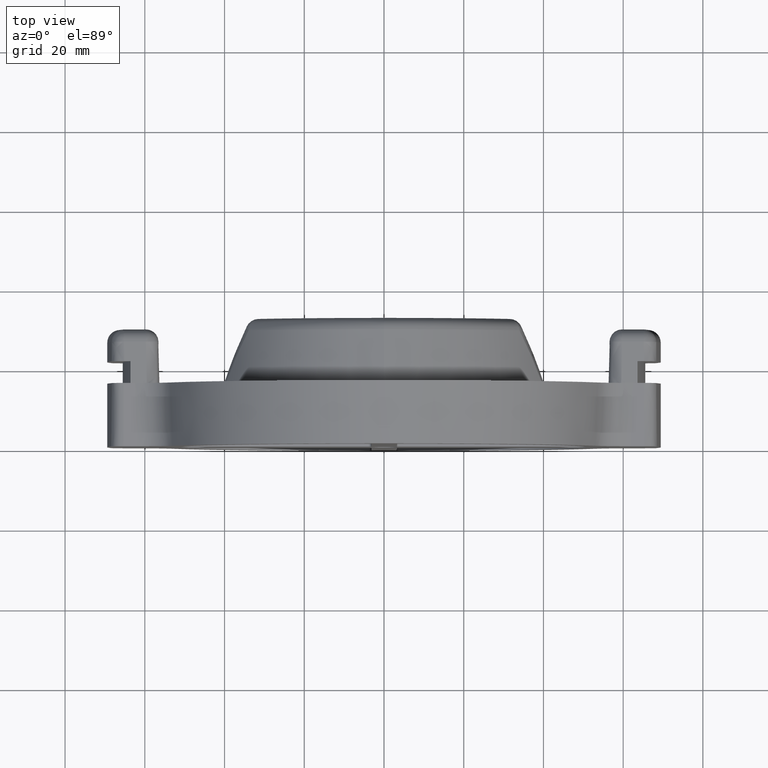
[diagram: clean part render]
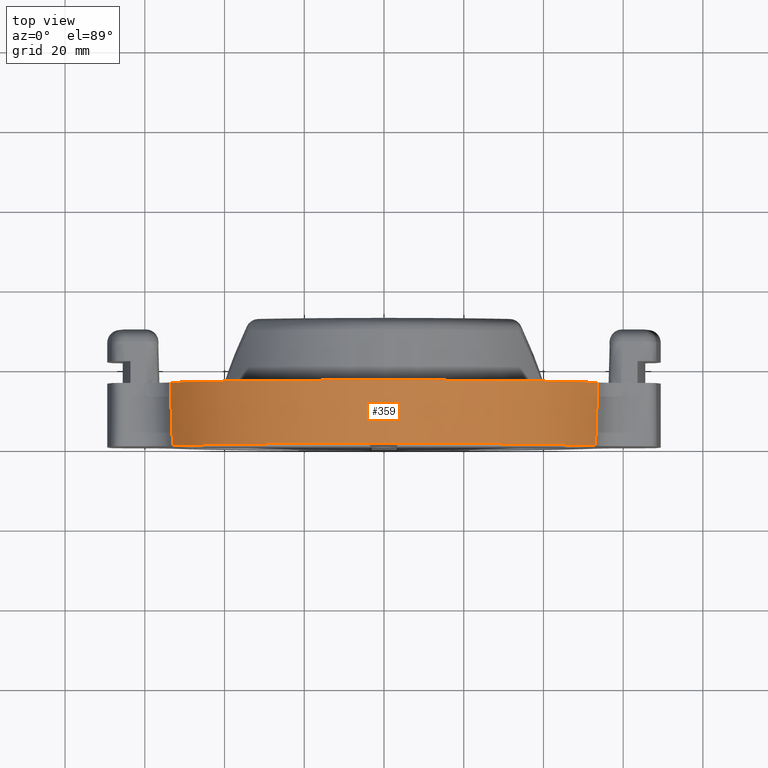
[diagram: same view with one face highlighted and labeled with its STEP entity id]
A machine part, top view. The second image highlights one B-rep face of the part: STEP entity #359.
In plain terms, the highlighted conical surface has half-angle 3 deg.
Its self-contained STEP definition (entity closure, byte-faithful):
#359 = ADVANCED_FACE ( 'NONE', ( #21512 ), #21515, .T. ) ;
#8483 = EDGE_LOOP ( 'NONE', ( #16608, #16607, #16606, #16605 ) ) ;
#12467 = AXIS2_PLACEMENT_3D ( 'NONE', #23083, #23114, #23115 ) ;
#12469 = AXIS2_PLACEMENT_3D ( 'NONE', #23200, #23201, #23202 ) ;
#13695 = CARTESIAN_POINT ( 'NONE',  ( 2.088889589663732900, 0.0000000000000000000, 0.8286440684792545400 ) ) ;
#13696 = CARTESIAN_POINT ( 'NONE',  ( -2.088889589663732900, 0.0000000000000000000, 0.8286440684792546500 ) ) ;
#14418 = VERTEX_POINT ( 'NONE', #14850 ) ;
#14419 = VERTEX_POINT ( 'NONE', #14851 ) ;
#14850 = CARTESIAN_POINT ( 'NONE',  ( -2.112204731012433400, 0.6250000000000000000, 0.8584819009674534700 ) ) ;
#14851 = CARTESIAN_POINT ( 'NONE',  ( 2.112204731012433400, 0.6250000000000000000, 0.8584819009674534700 ) ) ;
#16605 = ORIENTED_EDGE ( 'NONE', *, *, #24510, .T. ) ;
#16606 = ORIENTED_EDGE ( 'NONE', *, *, #24474, .T. ) ;
#16607 = ORIENTED_EDGE ( 'NONE', *, *, #24508, .T. ) ;
#16608 = ORIENTED_EDGE ( 'NONE', *, *, #24483, .F. ) ;
#20991 = AXIS2_PLACEMENT_3D ( 'NONE', #21115, #21114, #21112 ) ;
#21112 = DIRECTION ( 'NONE',  ( 0.0000000000000000000, 0.0000000000000000000, -1.000000000000000000 ) ) ;
#21114 = DIRECTION ( 'NONE',  ( 0.0000000000000000000, 1.000000000000000000, 0.0000000000000000000 ) ) ;
#21115 = CARTESIAN_POINT ( 'NONE',  ( 0.0000000000000000000, 0.6250000000000000000, 0.0000000000000000000 ) ) ;
#21512 = FACE_OUTER_BOUND ( 'NONE', #8483, .T. ) ;
#21515 = CONICAL_SURFACE ( 'NONE', #20991, 2.279999999999999800, 0.05235987755983000100 ) ;
#23083 = CARTESIAN_POINT ( 'NONE',  ( 0.0000000000000000000, 0.0000000000000000000, 0.0000000000000000000 ) ) ;
#23114 = DIRECTION ( 'NONE',  ( 0.0000000000000000000, 1.000000000000000000, 0.0000000000000000000 ) ) ;
#23115 = DIRECTION ( 'NONE',  ( 0.0000000000000000000, 0.0000000000000000000, 1.000000000000000000 ) ) ;
#23200 = CARTESIAN_POINT ( 'NONE',  ( 0.0000000000000000000, 0.6250000000000000000, 0.0000000000000000000 ) ) ;
#23201 = DIRECTION ( 'NONE',  ( 0.0000000000000000000, 1.000000000000000000, 0.0000000000000000000 ) ) ;
#23202 = DIRECTION ( 'NONE',  ( 0.0000000000000000000, 0.0000000000000000000, 1.000000000000000000 ) ) ;
#23320 = CARTESIAN_POINT ( 'NONE',  ( -2.112204731012433400, 0.6250000000000000000, 0.8584819009674534700 ) ) ;
#23378 = CARTESIAN_POINT ( 'NONE',  ( -2.104466355118057600, 0.4166660003576522800, 0.8485239267894932900 ) ) ;
#23379 = CARTESIAN_POINT ( 'NONE',  ( -2.096694901257117200, 0.2083326584182586800, 0.8385778323933280600 ) ) ;
#23380 = CARTESIAN_POINT ( 'NONE',  ( -2.088889589663732900, 0.0000000000000000000, 0.8286440684792546500 ) ) ;
#23381 = CARTESIAN_POINT ( 'NONE',  ( 2.088889589663732900, 0.0000000000000000000, 0.8286440684792545400 ) ) ;
#23386 = CARTESIAN_POINT ( 'NONE',  ( 2.096694901257117200, 0.2083326584182588800, 0.8385778323933280600 ) ) ;
#23387 = CARTESIAN_POINT ( 'NONE',  ( 2.104466355118057600, 0.4166660003576523300, 0.8485239267894930700 ) ) ;
#23388 = CARTESIAN_POINT ( 'NONE',  ( 2.112204731012433400, 0.6250000000000000000, 0.8584819009674534700 ) ) ;
#24474 = EDGE_CURVE ( 'NONE', #30886, #30885, #30279, .T. ) ;
#24483 = EDGE_CURVE ( 'NONE', #14418, #14419, #30286, .T. ) ;
#24508 = EDGE_CURVE ( 'NONE', #14418, #30886, #32966, .T. ) ;
#24510 = EDGE_CURVE ( 'NONE', #30885, #14419, #32968, .T. ) ;
#30279 = CIRCLE ( 'NONE', #12467, 2.247245137948099100 ) ;
#30286 = CIRCLE ( 'NONE', #12469, 2.279999999999999800 ) ;
#30885 = VERTEX_POINT ( 'NONE', #13695 ) ;
#30886 = VERTEX_POINT ( 'NONE', #13696 ) ;
#32966 = B_SPLINE_CURVE_WITH_KNOTS ( 'NONE', 3,
 ( #23320, #23378, #23379, #23380 ),
 .UNSPECIFIED., .F., .F.,
 ( 4, 4 ),
 ( 0.0000000000000000000, 0.01590410999722458700 ),
 .UNSPECIFIED. ) ;
#32968 = B_SPLINE_CURVE_WITH_KNOTS ( 'NONE', 3,
 ( #23381, #23386, #23387, #23388 ),
 .UNSPECIFIED., .F., .F.,
 ( 4, 4 ),
 ( 0.0000000000000000000, 0.01590410999722458700 ),
 .UNSPECIFIED. ) ;